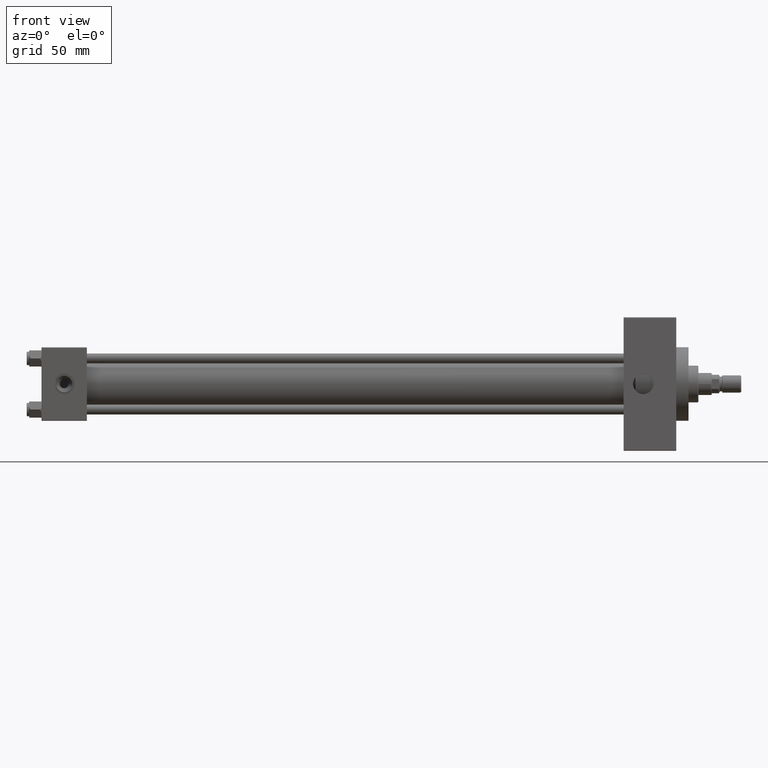
[diagram: clean part render]
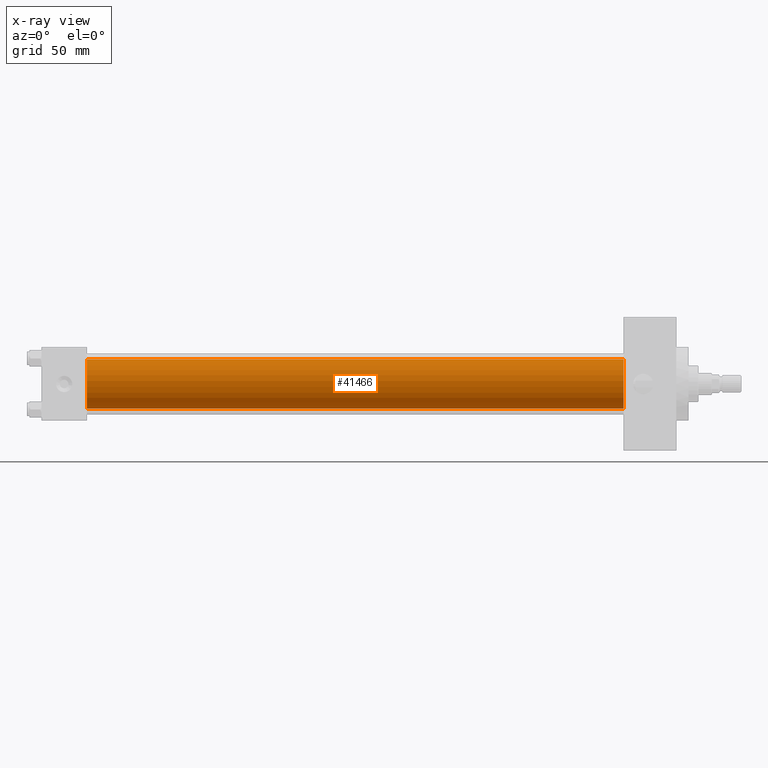
[diagram: x-ray — body ghosted, one internal face saturated and labeled with its STEP entity id]
A machine part, front view, then the same camera in x-ray: the body is ghosted and one INTERNAL B-rep face — a face not visible from any outside direction — is saturated and labeled: STEP entity #41466.
In plain terms, the highlighted cylindrical surface (edge-blend (fillet) strip) has radius 20 mm, axis along (-1, -0, -0).
Its self-contained STEP definition (entity closure, byte-faithful):
#727 = VERTEX_POINT ( 'NONE', #23250 ) ;
#1456 = CARTESIAN_POINT ( 'NONE',  ( 475.0000000000000000, -2.602085213965210642E-15, 0.000000000000000000 ) ) ;
#3628 = CARTESIAN_POINT ( 'NONE',  ( 475.0000000000000000, -2.602085213965210642E-15, 20.00000000000000000 ) ) ;
#4997 = AXIS2_PLACEMENT_3D ( 'NONE', #47114, #34735, #23090 ) ;
#7952 = DIRECTION ( 'NONE',  ( 0.000000000000000000, 0.000000000000000000, -1.000000000000000000 ) ) ;
#10188 = LINE ( 'NONE', #25588, #21368 ) ;
#10647 = AXIS2_PLACEMENT_3D ( 'NONE', #27150, #42563, #7952 ) ;
#11288 = EDGE_CURVE ( 'NONE', #27816, #727, #26371, .T. ) ;
#16470 = CARTESIAN_POINT ( 'NONE',  ( 475.0000000000000000, -1.527916156705042519E-16, -20.00000000000000000 ) ) ;
#17025 = VECTOR ( 'NONE', #34451, 1000.000000000000000 ) ;
#18494 = AXIS2_PLACEMENT_3D ( 'NONE', #1456, #28489, #25193 ) ;
#21368 = VECTOR ( 'NONE', #41000, 1000.000000000000000 ) ;
#22086 = VERTEX_POINT ( 'NONE', #16470 ) ;
#23090 = DIRECTION ( 'NONE',  ( 0.000000000000000000, 0.000000000000000000, -1.000000000000000000 ) ) ;
#23250 = CARTESIAN_POINT ( 'NONE',  ( 37.00000000000000000, -2.602085213965210642E-15, 20.00000000000000000 ) ) ;
#24356 = EDGE_CURVE ( 'NONE', #22086, #48721, #10188, .T. ) ;
#24939 = CYLINDRICAL_SURFACE ( 'NONE', #18494, 20.00000000000000000 ) ;
#25193 = DIRECTION ( 'NONE',  ( 0.000000000000000000, 0.000000000000000000, 1.000000000000000000 ) ) ;
#25588 = CARTESIAN_POINT ( 'NONE',  ( 475.0000000000000000, -1.527916156705042519E-16, -20.00000000000000000 ) ) ;
#26371 = LINE ( 'NONE', #41778, #17025 ) ;
#27150 = CARTESIAN_POINT ( 'NONE',  ( 475.0000000000000000, -2.602085213965210642E-15, 0.000000000000000000 ) ) ;
#27816 = VERTEX_POINT ( 'NONE', #3628 ) ;
#28489 = DIRECTION ( 'NONE',  ( -1.000000000000000000, -0.000000000000000000, -0.000000000000000000 ) ) ;
#30454 = EDGE_LOOP ( 'NONE', ( #46105, #39545, #30623, #46319 ) ) ;
#30623 = ORIENTED_EDGE ( 'NONE', *, *, #47732, .F. ) ;
#32440 = CIRCLE ( 'NONE', #10647, 20.00000000000000000 ) ;
#34451 = DIRECTION ( 'NONE',  ( -1.000000000000000000, -0.000000000000000000, -0.000000000000000000 ) ) ;
#34735 = DIRECTION ( 'NONE',  ( 1.000000000000000000, 0.000000000000000000, 0.000000000000000000 ) ) ;
#36810 = FACE_OUTER_BOUND ( 'NONE', #30454, .T. ) ;
#38079 = CIRCLE ( 'NONE', #4997, 20.00000000000000000 ) ;
#39545 = ORIENTED_EDGE ( 'NONE', *, *, #24356, .T. ) ;
#40782 = CARTESIAN_POINT ( 'NONE',  ( 37.00000000000000000, -1.527916156705042519E-16, -20.00000000000000000 ) ) ;
#41000 = DIRECTION ( 'NONE',  ( -1.000000000000000000, -0.000000000000000000, -0.000000000000000000 ) ) ;
#41466 = ADVANCED_FACE ( 'NONE', ( #36810 ), #24939, .F. ) ;
#41778 = CARTESIAN_POINT ( 'NONE',  ( 475.0000000000000000, -2.602085213965210642E-15, 20.00000000000000000 ) ) ;
#42563 = DIRECTION ( 'NONE',  ( 1.000000000000000000, 0.000000000000000000, 0.000000000000000000 ) ) ;
#46105 = ORIENTED_EDGE ( 'NONE', *, *, #47787, .T. ) ;
#46319 = ORIENTED_EDGE ( 'NONE', *, *, #11288, .F. ) ;
#47114 = CARTESIAN_POINT ( 'NONE',  ( 37.00000000000000000, -2.602085213965210642E-15, 0.000000000000000000 ) ) ;
#47732 = EDGE_CURVE ( 'NONE', #727, #48721, #38079, .T. ) ;
#47787 = EDGE_CURVE ( 'NONE', #27816, #22086, #32440, .T. ) ;
#48721 = VERTEX_POINT ( 'NONE', #40782 ) ;